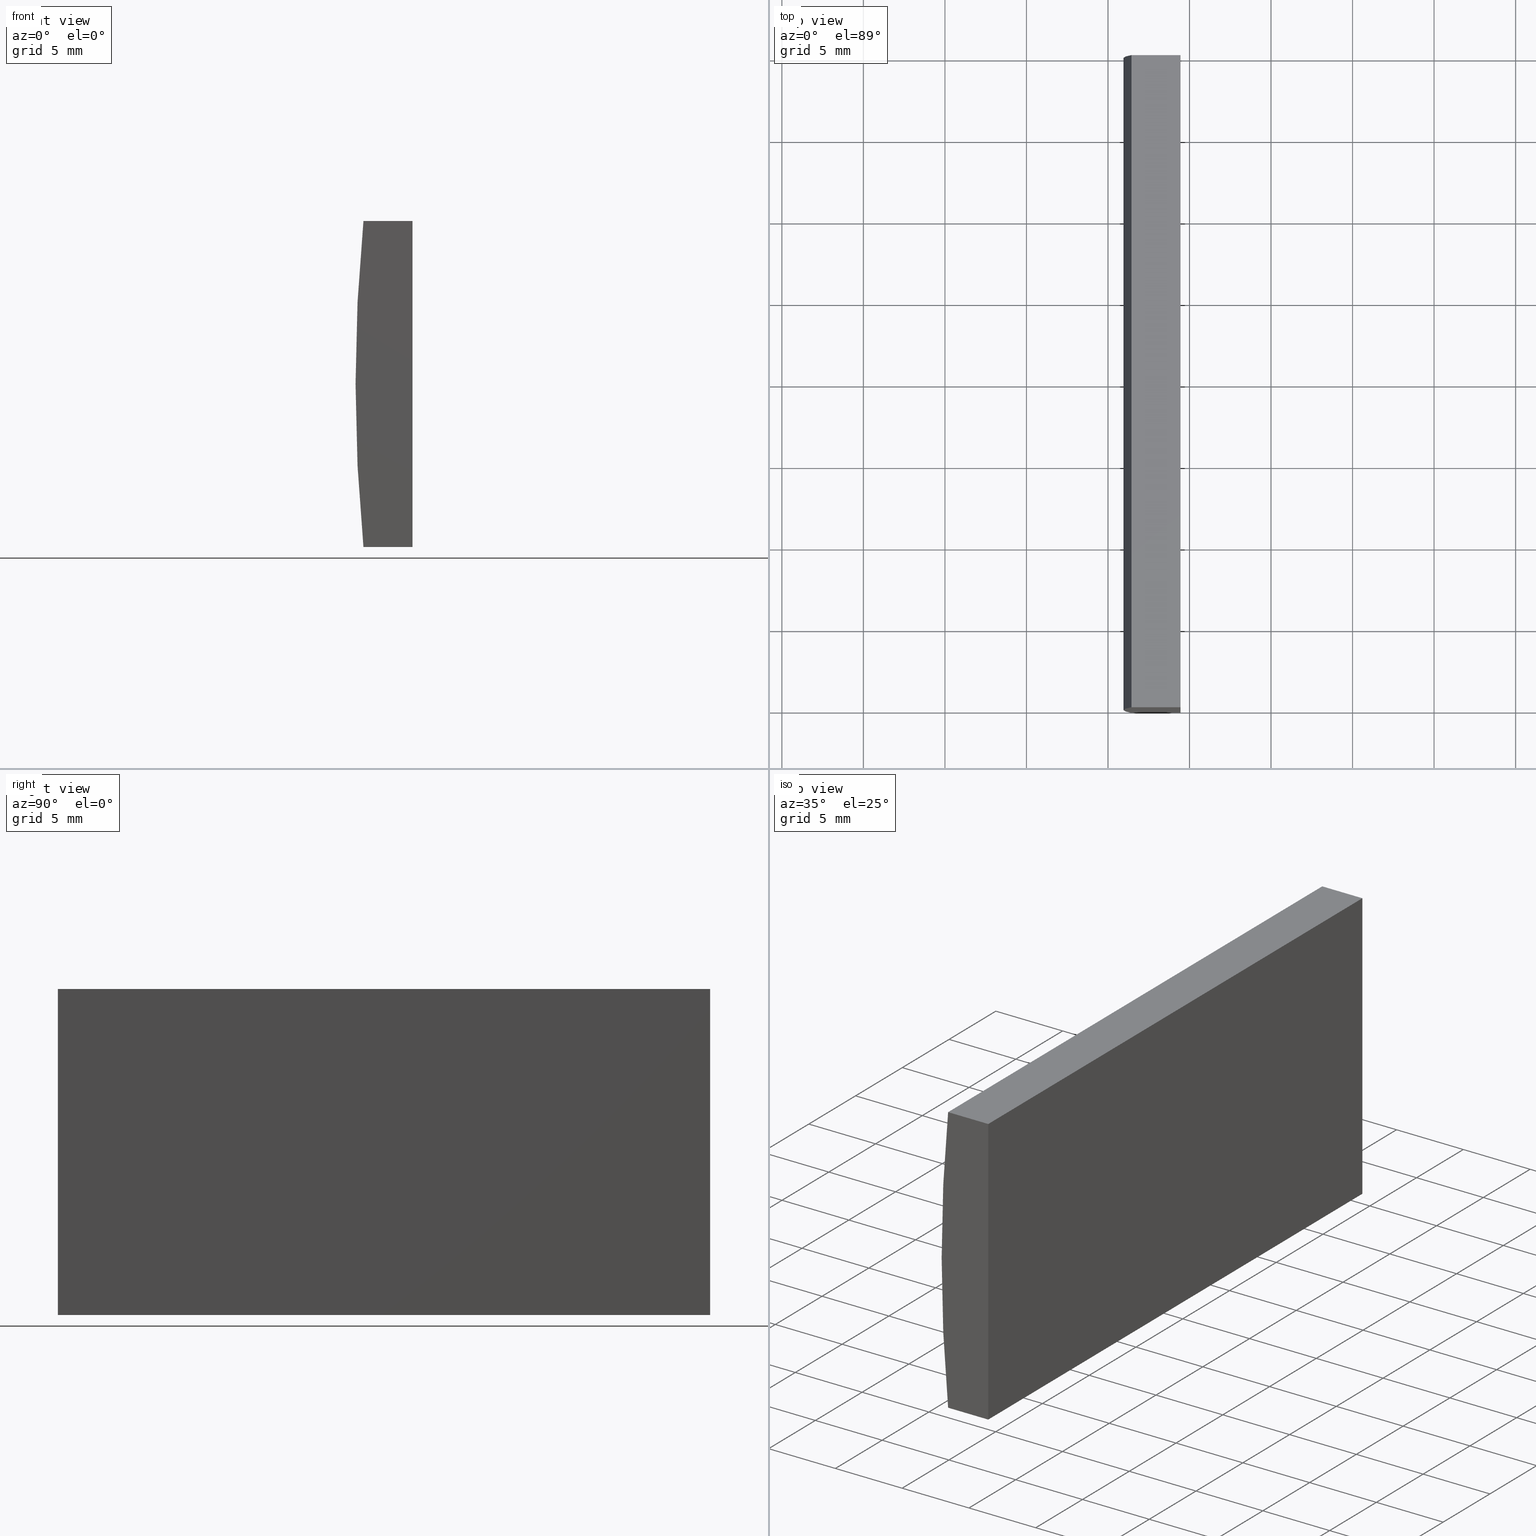
[diagram: canonical four-view strip — front | top / right | iso, engineering-drawing reading convention]
A machine part, canonical four-view strip (front | top / right | iso — engineering-drawing reading convention). The complete STEP part file that produces these views, byte-faithful:
ISO-10303-21;
HEADER;
FILE_DESCRIPTION (( 'STEP AP214' ),
    '1' );
FILE_NAME ('155051.STEP',
    '2019-06-18T06:10:22',
    ( 'user' ),
    ( '΢���й�' ),
    'SwSTEP 2.0',
    'SolidWorks 2016',
    '' );
FILE_SCHEMA (( 'AUTOMOTIVE_DESIGN' ));
ENDSEC;

DATA;
#1 = EDGE_CURVE ( 'NONE', #152, #96, #70, .T. ) ;
#2 = SURFACE_SIDE_STYLE ('',( #80 ) ) ;
#3 = ORIENTED_EDGE ( 'NONE', *, *, #123, .T. ) ;
#4 = FACE_OUTER_BOUND ( 'NONE', #141, .T. ) ;
#5 = EDGE_CURVE ( 'NONE', #39, #11, #122, .T. ) ;
#6 =( LENGTH_UNIT ( ) NAMED_UNIT ( * ) SI_UNIT ( .MILLI., .METRE. ) );
#7 = CARTESIAN_POINT ( 'NONE',  ( 0.0000000000000000000, 0.0000000000000000000, 0.0000000000000000000 ) ) ;
#8 = CARTESIAN_POINT ( 'NONE',  ( -95.55479566514874500, 40.00000000000000000, -10.00000000000000400 ) ) ;
#9 = CARTESIAN_POINT ( 'NONE',  ( 4.355204334851265500, 40.00000000000000000, 4.286263797015675000E-017 ) ) ;
#10 = MECHANICAL_DESIGN_GEOMETRIC_PRESENTATION_REPRESENTATION (  '', ( #36 ), #16 ) ;
#11 = VERTEX_POINT ( 'NONE', #52 ) ;
#12 = ORIENTED_EDGE ( 'NONE', *, *, #99, .T. ) ;
#13 = DIRECTION ( 'NONE',  ( -0.0000000000000000000, -1.000000000000000000, -0.0000000000000000000 ) ) ;
#14 = PRODUCT_DEFINITION ( 'δ֪', '', #95, #57 ) ;
#15 = COLOUR_RGB ( '',1.000000000000000000, 1.000000000000000000, 1.000000000000000000 ) ;
#16 =( GEOMETRIC_REPRESENTATION_CONTEXT ( 3 ) GLOBAL_UNCERTAINTY_ASSIGNED_CONTEXT ( ( #121 ) ) GLOBAL_UNIT_ASSIGNED_CONTEXT ( ( #62, #143, #64 ) ) REPRESENTATION_CONTEXT ( 'NONE', 'WORKASPACE' ) );
#17 = ADVANCED_FACE ( 'NONE', ( #197 ), #193, .F. ) ;
#18 = FACE_OUTER_BOUND ( 'NONE', #195, .T. ) ;
#19 = APPLICATION_PROTOCOL_DEFINITION ( 'draft international standard', 'automotive_design', 1998, #44 ) ;
#20 = ORIENTED_EDGE ( 'NONE', *, *, #22, .F. ) ;
#21 = UNCERTAINTY_MEASURE_WITH_UNIT (LENGTH_MEASURE( 1.000000000000000100E-005 ), #119, 'distance_accuracy_value', 'NONE');
#22 = EDGE_CURVE ( 'NONE', #28, #172, #199, .T. ) ;
#23 = FACE_OUTER_BOUND ( 'NONE', #164, .T. ) ;
#24 = CARTESIAN_POINT ( 'NONE',  ( -98.56010064939296500, 40.00000000000000000, 10.00000000000000000 ) ) ;
#25 = DIRECTION ( 'NONE',  ( 1.000000000000000000, 0.0000000000000000000, 0.0000000000000000000 ) ) ;
#26 = ADVANCED_FACE ( 'NONE', ( #4 ), #159, .F. ) ;
#27 = VECTOR ( 'NONE', #107, 1000.000000000000000 ) ;
#28 = VERTEX_POINT ( 'NONE', #8 ) ;
#29 = VECTOR ( 'NONE', #13, 1000.000000000000000 ) ;
#30 = AXIS2_PLACEMENT_3D ( 'NONE', #157, #176, #111 ) ;
#31 = ORIENTED_EDGE ( 'NONE', *, *, #123, .F. ) ;
#32 = SURFACE_STYLE_USAGE ( .BOTH. , #2 ) ;
#33 = CARTESIAN_POINT ( 'NONE',  ( -98.56010064939295000, 40.00000000000000000, -10.00000000000000000 ) ) ;
#34 = LINE ( 'NONE', #198, #162 ) ;
#35 = VECTOR ( 'NONE', #187, 1000.000000000000000 ) ;
#36 = STYLED_ITEM ( 'NONE', ( #78 ), #148 ) ;
#37 = ORIENTED_EDGE ( 'NONE', *, *, #91, .F. ) ;
#38 = CARTESIAN_POINT ( 'NONE',  ( -98.56010064939296500, 40.00000000000000000, 10.00000000000000000 ) ) ;
#39 = VERTEX_POINT ( 'NONE', #169 ) ;
#40 = CARTESIAN_POINT ( 'NONE',  ( -95.55479566514874500, 40.00000000000000000, -10.00000000000000400 ) ) ;
#41 = ORIENTED_EDGE ( 'NONE', *, *, #142, .F. ) ;
#42 = EDGE_LOOP ( 'NONE', ( #51, #182, #108, #72 ) ) ;
#43 = AXIS2_PLACEMENT_3D ( 'NONE', #165, #129, #170 ) ;
#44 = APPLICATION_CONTEXT ( 'automotive_design' ) ;
#45 =( NAMED_UNIT ( * ) SI_UNIT ( $, .STERADIAN. ) SOLID_ANGLE_UNIT ( ) );
#46 = ADVANCED_FACE ( 'NONE', ( #55 ), #144, .T. ) ;
#47 = AXIS2_PLACEMENT_3D ( 'NONE', #9, #138, #125 ) ;
#48 = PLANE ( 'NONE',  #113 ) ;
#49 = LINE ( 'NONE', #110, #100 ) ;
#50 = PRESENTATION_LAYER_ASSIGNMENT (  '', '', ( #36 ) ) ;
#51 = ORIENTED_EDGE ( 'NONE', *, *, #1, .T. ) ;
#52 = CARTESIAN_POINT ( 'NONE',  ( -95.55479566514874500, 0.0000000000000000000, 10.00000000000000000 ) ) ;
#53 = DIRECTION ( 'NONE',  ( 1.000000000000000000, 0.0000000000000000000, -1.154440887078928100E-015 ) ) ;
#54 = DIRECTION ( 'NONE',  ( -0.0000000000000000000, -1.000000000000000000, -0.0000000000000000000 ) ) ;
#55 = FACE_OUTER_BOUND ( 'NONE', #42, .T. ) ;
#56 = DIRECTION ( 'NONE',  ( 0.0000000000000000000, 0.0000000000000000000, 1.000000000000000000 ) ) ;
#57 = PRODUCT_DEFINITION_CONTEXT ( 'detailed design', #116, 'design' ) ;
#58 = CARTESIAN_POINT ( 'NONE',  ( -98.56010064939295000, 40.00000000000000000, -10.00000000000000000 ) ) ;
#59 = VECTOR ( 'NONE', #92, 1000.000000000000000 ) ;
#60 = PRODUCT_RELATED_PRODUCT_CATEGORY ( 'part', '', ( #158 ) ) ;
#61 = DIRECTION ( 'NONE',  ( -1.000000000000000000, -0.0000000000000000000, 1.154440887078928100E-015 ) ) ;
#62 =( LENGTH_UNIT ( ) NAMED_UNIT ( * ) SI_UNIT ( .MILLI., .METRE. ) );
#63 = ADVANCED_FACE ( 'NONE', ( #23 ), #66, .F. ) ;
#64 =( NAMED_UNIT ( * ) SI_UNIT ( $, .STERADIAN. ) SOLID_ANGLE_UNIT ( ) );
#65 =( GEOMETRIC_REPRESENTATION_CONTEXT ( 3 ) GLOBAL_UNCERTAINTY_ASSIGNED_CONTEXT ( ( #82 ) ) GLOBAL_UNIT_ASSIGNED_CONTEXT ( ( #6, #178, #101 ) ) REPRESENTATION_CONTEXT ( 'NONE', 'WORKASPACE' ) );
#66 = PLANE ( 'NONE',  #130 ) ;
#67 = SURFACE_SIDE_STYLE ('',( #88 ) ) ;
#68 = ADVANCED_FACE ( 'NONE', ( #79 ), #75, .T. ) ;
#69 = ORIENTED_EDGE ( 'NONE', *, *, #166, .F. ) ;
#70 = CIRCLE ( 'NONE', #30, 103.4000000000000200 ) ;
#71 = FILL_AREA_STYLE_COLOUR ( '', #126 ) ;
#72 = ORIENTED_EDGE ( 'NONE', *, *, #142, .T. ) ;
#73 = EDGE_CURVE ( 'NONE', #28, #128, #185, .T. ) ;
#74 = ORIENTED_EDGE ( 'NONE', *, *, #90, .T. ) ;
#75 = PLANE ( 'NONE',  #47 ) ;
#76 = LINE ( 'NONE', #127, #27 ) ;
#77 = PRODUCT_CONTEXT ( 'NONE', #44, 'mechanical' ) ;
#78 = PRESENTATION_STYLE_ASSIGNMENT (( #32 ) ) ;
#79 = FACE_OUTER_BOUND ( 'NONE', #137, .T. ) ;
#80 = SURFACE_STYLE_FILL_AREA ( #201 ) ;
#81 = ORIENTED_EDGE ( 'NONE', *, *, #73, .T. ) ;
#82 = UNCERTAINTY_MEASURE_WITH_UNIT (LENGTH_MEASURE( 1.000000000000000100E-005 ), #6, 'distance_accuracy_value', 'NONE');
#83 = CARTESIAN_POINT ( 'NONE',  ( -95.55479566514874500, 0.0000000000000000000, -10.00000000000000400 ) ) ;
#84 = VECTOR ( 'NONE', #115, 1000.000000000000000 ) ;
#85 = MANIFOLD_SOLID_BREP ( '͹̨-����1', #204 ) ;
#86 = AXIS2_PLACEMENT_3D ( 'NONE', #183, #109, #177 ) ;
#87 = ORIENTED_EDGE ( 'NONE', *, *, #5, .T. ) ;
#88 = SURFACE_STYLE_FILL_AREA ( #136 ) ;
#89 = DIRECTION ( 'NONE',  ( 0.0000000000000000000, 0.0000000000000000000, 1.000000000000000000 ) ) ;
#90 = EDGE_CURVE ( 'NONE', #128, #152, #145, .T. ) ;
#91 = EDGE_CURVE ( 'NONE', #39, #28, #203, .T. ) ;
#92 = DIRECTION ( 'NONE',  ( -0.0000000000000000000, -0.0000000000000000000, -1.000000000000000000 ) ) ;
#93 = CARTESIAN_POINT ( 'NONE',  ( -98.56010064939296500, 0.0000000000000000000, 10.00000000000000000 ) ) ;
#94 = DIRECTION ( 'NONE',  ( -1.000000000000000000, 0.0000000000000000000, 0.0000000000000000000 ) ) ;
#95 = PRODUCT_DEFINITION_FORMATION_WITH_SPECIFIED_SOURCE ( '�κ�', '', #158, .NOT_KNOWN. ) ;
#96 = VERTEX_POINT ( 'NONE', #93 ) ;
#97 = DIRECTION ( 'NONE',  ( 1.000000000000000000, 0.0000000000000000000, 0.0000000000000000000 ) ) ;
#98 = SHAPE_DEFINITION_REPRESENTATION ( #131, #148 ) ;
#99 = EDGE_CURVE ( 'NONE', #172, #171, #139, .T. ) ;
#100 = VECTOR ( 'NONE', #54, 1000.000000000000000 ) ;
#101 =( NAMED_UNIT ( * ) SI_UNIT ( $, .STERADIAN. ) SOLID_ANGLE_UNIT ( ) );
#102 = DIRECTION ( 'NONE',  ( 1.000000000000000000, 0.0000000000000000000, 0.0000000000000000000 ) ) ;
#103 = DIRECTION ( 'NONE',  ( -0.0000000000000000000, -1.000000000000000000, -0.0000000000000000000 ) ) ;
#104 = ORIENTED_EDGE ( 'NONE', *, *, #190, .T. ) ;
#105 =( NAMED_UNIT ( * ) PLANE_ANGLE_UNIT ( ) SI_UNIT ( $, .RADIAN. ) );
#106 = EDGE_CURVE ( 'NONE', #171, #39, #34, .T. ) ;
#107 = DIRECTION ( 'NONE',  ( -0.0000000000000000000, -1.000000000000000000, -0.0000000000000000000 ) ) ;
#108 = ORIENTED_EDGE ( 'NONE', *, *, #99, .F. ) ;
#109 = DIRECTION ( 'NONE',  ( -0.0000000000000000000, -1.000000000000000000, -0.0000000000000000000 ) ) ;
#110 = CARTESIAN_POINT ( 'NONE',  ( -98.56010064939295000, 40.00000000000000000, -10.00000000000000000 ) ) ;
#111 = DIRECTION ( 'NONE',  ( 0.0000000000000000000, 0.0000000000000000000, 1.000000000000000000 ) ) ;
#112 = ORIENTED_EDGE ( 'NONE', *, *, #5, .F. ) ;
#113 = AXIS2_PLACEMENT_3D ( 'NONE', #40, #94, #120 ) ;
#114 = DIRECTION ( 'NONE',  ( -1.000000000000000000, 0.0000000000000000000, -0.0000000000000000000 ) ) ;
#115 = DIRECTION ( 'NONE',  ( -0.0000000000000000000, -0.0000000000000000000, -1.000000000000000000 ) ) ;
#116 = APPLICATION_CONTEXT ( 'automotive_design' ) ;
#117 =( GEOMETRIC_REPRESENTATION_CONTEXT ( 3 ) GLOBAL_UNCERTAINTY_ASSIGNED_CONTEXT ( ( #21 ) ) GLOBAL_UNIT_ASSIGNED_CONTEXT ( ( #119, #105, #45 ) ) REPRESENTATION_CONTEXT ( 'NONE', 'WORKASPACE' ) );
#118 = CARTESIAN_POINT ( 'NONE',  ( 4.355204334851265500, 40.00000000000000000, 4.286263797015675000E-017 ) ) ;
#119 =( LENGTH_UNIT ( ) NAMED_UNIT ( * ) SI_UNIT ( .MILLI., .METRE. ) );
#120 = DIRECTION ( 'NONE',  ( 0.0000000000000000000, 0.0000000000000000000, 1.000000000000000000 ) ) ;
#121 = UNCERTAINTY_MEASURE_WITH_UNIT (LENGTH_MEASURE( 1.000000000000000100E-005 ), #62, 'distance_accuracy_value', 'NONE');
#122 = LINE ( 'NONE', #151, #29 ) ;
#123 = EDGE_CURVE ( 'NONE', #96, #11, #179, .T. ) ;
#124 = ORIENTED_EDGE ( 'NONE', *, *, #106, .F. ) ;
#125 = DIRECTION ( 'NONE',  ( 0.0000000000000000000, -0.0000000000000000000, 1.000000000000000000 ) ) ;
#126 = COLOUR_RGB ( '',1.000000000000000000, 1.000000000000000000, 1.000000000000000000 ) ;
#127 = CARTESIAN_POINT ( 'NONE',  ( -98.56010064939296500, 40.00000000000000000, 10.00000000000000000 ) ) ;
#128 = VERTEX_POINT ( 'NONE', #175 ) ;
#129 = DIRECTION ( 'NONE',  ( 0.0000000000000000000, 1.000000000000000000, 0.0000000000000000000 ) ) ;
#130 = AXIS2_PLACEMENT_3D ( 'NONE', #58, #194, #53 ) ;
#131 = PRODUCT_DEFINITION_SHAPE ( 'NONE', 'NONE',  #14 ) ;
#132 = VECTOR ( 'NONE', #97, 1000.000000000000000 ) ;
#133 = STYLED_ITEM ( 'NONE', ( #188 ), #85 ) ;
#134 = ORIENTED_EDGE ( 'NONE', *, *, #91, .T. ) ;
#135 = AXIS2_PLACEMENT_3D ( 'NONE', #118, #196, #56 ) ;
#136 = FILL_AREA_STYLE ('',( #149 ) ) ;
#137 = EDGE_LOOP ( 'NONE', ( #12, #147, #134, #154 ) ) ;
#138 = DIRECTION ( 'NONE',  ( 0.0000000000000000000, 1.000000000000000000, 0.0000000000000000000 ) ) ;
#139 = CIRCLE ( 'NONE', #135, 103.4000000000000200 ) ;
#140 = ORIENTED_EDGE ( 'NONE', *, *, #166, .T. ) ;
#141 = EDGE_LOOP ( 'NONE', ( #189, #186, #69, #31 ) ) ;
#142 = EDGE_CURVE ( 'NONE', #172, #152, #49, .T. ) ;
#143 =( NAMED_UNIT ( * ) PLANE_ANGLE_UNIT ( ) SI_UNIT ( $, .RADIAN. ) );
#144 = CYLINDRICAL_SURFACE ( 'NONE', #86, 103.4000000000000200 ) ;
#145 = LINE ( 'NONE', #156, #146 ) ;
#146 = VECTOR ( 'NONE', #61, 1000.000000000000000 ) ;
#147 = ORIENTED_EDGE ( 'NONE', *, *, #106, .T. ) ;
#148 = ADVANCED_BREP_SHAPE_REPRESENTATION ( '155051', ( #85, #180 ), #117 ) ;
#149 = FILL_AREA_STYLE_COLOUR ( '', #15 ) ;
#150 = CARTESIAN_POINT ( 'NONE',  ( -95.55479566514874500, 40.00000000000000000, -10.00000000000000400 ) ) ;
#151 = CARTESIAN_POINT ( 'NONE',  ( -95.55479566514874500, 40.00000000000000000, 10.00000000000000000 ) ) ;
#152 = VERTEX_POINT ( 'NONE', #200 ) ;
#153 = VECTOR ( 'NONE', #103, 1000.000000000000000 ) ;
#154 = ORIENTED_EDGE ( 'NONE', *, *, #22, .T. ) ;
#155 = CARTESIAN_POINT ( 'NONE',  ( -95.55479566514874500, 40.00000000000000000, -10.00000000000000400 ) ) ;
#156 = CARTESIAN_POINT ( 'NONE',  ( -98.56010064939295000, 0.0000000000000000000, -10.00000000000000000 ) ) ;
#157 = CARTESIAN_POINT ( 'NONE',  ( 4.355204334851265500, 0.0000000000000000000, 4.286263797015675000E-017 ) ) ;
#158 = PRODUCT ( '155051', '155051', '', ( #77 ) ) ;
#159 = PLANE ( 'NONE',  #43 ) ;
#160 = APPLICATION_PROTOCOL_DEFINITION ( 'draft international standard', 'automotive_design', 1998, #116 ) ;
#161 = EDGE_LOOP ( 'NONE', ( #3, #112, #124, #104 ) ) ;
#162 = VECTOR ( 'NONE', #25, 1000.000000000000000 ) ;
#163 = CARTESIAN_POINT ( 'NONE',  ( -98.56010064939296500, 0.0000000000000000000, 10.00000000000000000 ) ) ;
#164 = EDGE_LOOP ( 'NONE', ( #74, #41, #20, #81 ) ) ;
#165 = CARTESIAN_POINT ( 'NONE',  ( 4.355204334851265500, 0.0000000000000000000, 4.286263797015675000E-017 ) ) ;
#166 = EDGE_CURVE ( 'NONE', #11, #128, #167, .T. ) ;
#167 = LINE ( 'NONE', #83, #59 ) ;
#168 = MECHANICAL_DESIGN_GEOMETRIC_PRESENTATION_REPRESENTATION (  '', ( #133 ), #65 ) ;
#169 = CARTESIAN_POINT ( 'NONE',  ( -95.55479566514874500, 40.00000000000000000, 10.00000000000000000 ) ) ;
#170 = DIRECTION ( 'NONE',  ( 0.0000000000000000000, -0.0000000000000000000, 1.000000000000000000 ) ) ;
#171 = VERTEX_POINT ( 'NONE', #38 ) ;
#172 = VERTEX_POINT ( 'NONE', #184 ) ;
#173 = PRESENTATION_LAYER_ASSIGNMENT (  '', '', ( #133 ) ) ;
#174 = ORIENTED_EDGE ( 'NONE', *, *, #73, .F. ) ;
#175 = CARTESIAN_POINT ( 'NONE',  ( -95.55479566514874500, 0.0000000000000000000, -10.00000000000000400 ) ) ;
#176 = DIRECTION ( 'NONE',  ( 0.0000000000000000000, 1.000000000000000000, 0.0000000000000000000 ) ) ;
#177 = DIRECTION ( 'NONE',  ( 0.0000000000000000000, 0.0000000000000000000, -1.000000000000000000 ) ) ;
#178 =( NAMED_UNIT ( * ) PLANE_ANGLE_UNIT ( ) SI_UNIT ( $, .RADIAN. ) );
#179 = LINE ( 'NONE', #163, #132 ) ;
#180 = AXIS2_PLACEMENT_3D ( 'NONE', #7, #89, #102 ) ;
#181 = AXIS2_PLACEMENT_3D ( 'NONE', #24, #191, #114 ) ;
#182 = ORIENTED_EDGE ( 'NONE', *, *, #190, .F. ) ;
#183 = CARTESIAN_POINT ( 'NONE',  ( 4.355204334851265500, 40.00000000000000000, 4.286263797015675000E-017 ) ) ;
#184 = CARTESIAN_POINT ( 'NONE',  ( -98.56010064939295000, 40.00000000000000000, -10.00000000000000000 ) ) ;
#185 = LINE ( 'NONE', #150, #153 ) ;
#186 = ORIENTED_EDGE ( 'NONE', *, *, #90, .F. ) ;
#187 = DIRECTION ( 'NONE',  ( -1.000000000000000000, -0.0000000000000000000, 1.154440887078928100E-015 ) ) ;
#188 = PRESENTATION_STYLE_ASSIGNMENT (( #202 ) ) ;
#189 = ORIENTED_EDGE ( 'NONE', *, *, #1, .F. ) ;
#190 = EDGE_CURVE ( 'NONE', #171, #96, #76, .T. ) ;
#191 = DIRECTION ( 'NONE',  ( 0.0000000000000000000, 0.0000000000000000000, -1.000000000000000000 ) ) ;
#192 = ADVANCED_FACE ( 'NONE', ( #18 ), #48, .F. ) ;
#193 = PLANE ( 'NONE',  #181 ) ;
#194 = DIRECTION ( 'NONE',  ( 1.154440887078928100E-015, -0.0000000000000000000, 1.000000000000000000 ) ) ;
#195 = EDGE_LOOP ( 'NONE', ( #140, #174, #37, #87 ) ) ;
#196 = DIRECTION ( 'NONE',  ( 0.0000000000000000000, 1.000000000000000000, 0.0000000000000000000 ) ) ;
#197 = FACE_OUTER_BOUND ( 'NONE', #161, .T. ) ;
#198 = CARTESIAN_POINT ( 'NONE',  ( -98.56010064939296500, 40.00000000000000000, 10.00000000000000000 ) ) ;
#199 = LINE ( 'NONE', #33, #35 ) ;
#200 = CARTESIAN_POINT ( 'NONE',  ( -98.56010064939295000, 0.0000000000000000000, -10.00000000000000000 ) ) ;
#201 = FILL_AREA_STYLE ('',( #71 ) ) ;
#202 = SURFACE_STYLE_USAGE ( .BOTH. , #67 ) ;
#203 = LINE ( 'NONE', #155, #84 ) ;
#204 = CLOSED_SHELL ( 'NONE', ( #46, #17, #192, #63, #68, #26 ) ) ;
ENDSEC;
END-ISO-10303-21;
